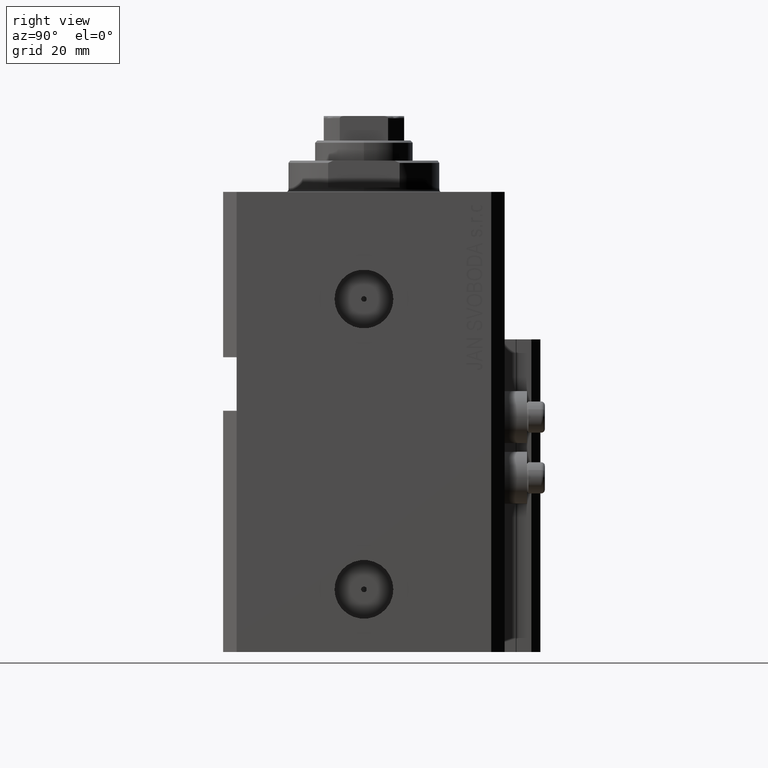
[diagram: clean part render]
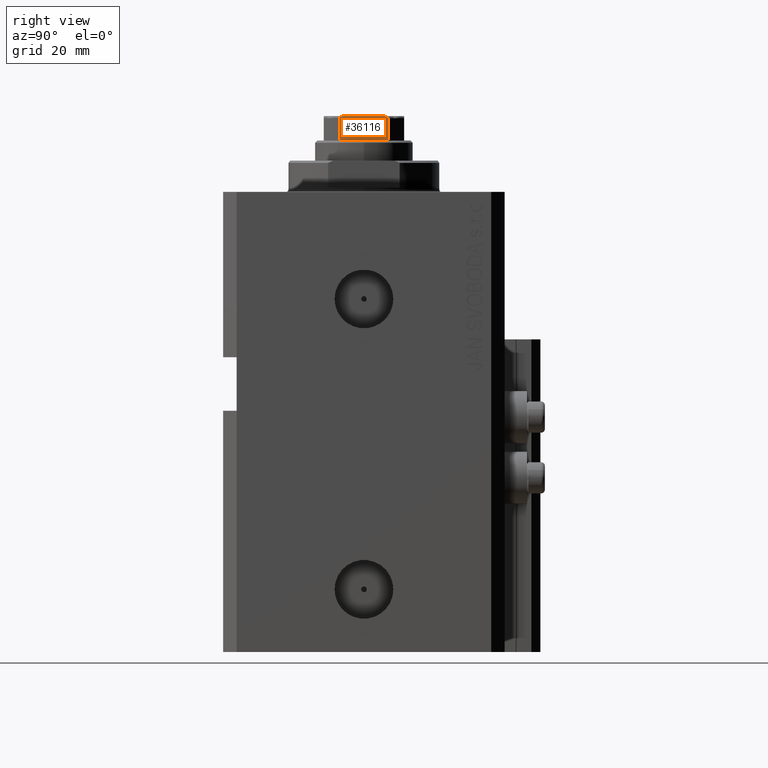
[diagram: same view with one face highlighted and labeled with its STEP entity id]
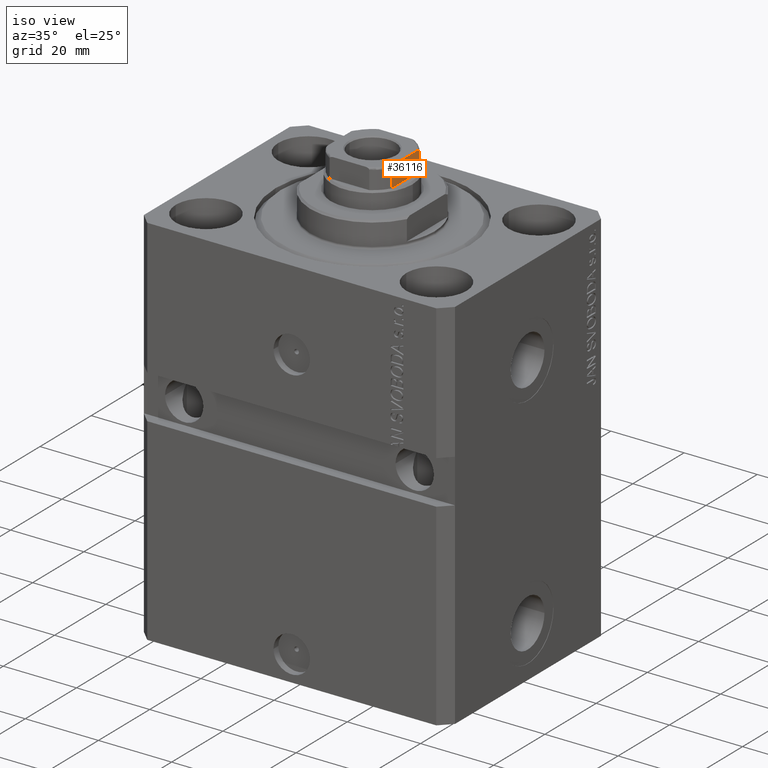
[diagram: same view with one face highlighted and labeled with its STEP entity id]
A machine part, right view. The second image highlights one B-rep face of the part: STEP entity #36116.
A second angle (iso view) of the same face is appended — the face is thin or edge-on in the first view.
In plain terms, the highlighted planar face has unit normal (-1, -0, 0).
Its self-contained STEP definition (entity closure, byte-faithful):
#172 = CARTESIAN_POINT ( 'NONE',  ( 9.000000000000000000, -4.569272810556663345, 108.6000000000000227 ) ) ;
#412 = CARTESIAN_POINT ( 'NONE',  ( 9.000000000000000000, -5.335288102212750516, 108.2956905402761976 ) ) ;
#932 = CARTESIAN_POINT ( 'NONE',  ( 8.999999999999996447, -5.408326913195990571, 108.1000000000000085 ) ) ;
#2452 = EDGE_CURVE ( 'NONE', #34375, #44180, #30766, .T. ) ;
#4058 = CARTESIAN_POINT ( 'NONE',  ( 9.000000000000003553, -5.408326913195981689, 108.1537434673187903 ) ) ;
#4547 = CARTESIAN_POINT ( 'NONE',  ( 9.000000000000000000, -5.297634495023392454, 108.3344228052779954 ) ) ;
#5740 = VECTOR ( 'NONE', #33685, 1000.000000000000000 ) ;
#7480 = CARTESIAN_POINT ( 'NONE',  ( 9.000000000000001776, -4.358898943540675752, 108.6000000000000085 ) ) ;
#7713 = CARTESIAN_POINT ( 'NONE',  ( 9.000000000000001776, -4.775913644518298362, 108.5781460743082931 ) ) ;
#7873 = B_SPLINE_CURVE_WITH_KNOTS ( 'NONE', 3,
 ( #20241, #41650, #8319, #20481, #12936, #30941, #27772, #35312, #45785, #9287 ),
 .UNSPECIFIED., .F., .F.,
 ( 4, 2, 2, 2, 4 ),
 ( 0.000000000000000000, 0.0001582447020888230174, 0.0003164894041776460348, 0.0006329788083552681088, 0.001265957616710514533 ),
 .UNSPECIFIED. ) ;
#8319 = CARTESIAN_POINT ( 'NONE',  ( 8.999999999999998224, 5.390954572107322207, 108.2053628521400128 ) ) ;
#8452 = CARTESIAN_POINT ( 'NONE',  ( 8.999999999999996447, -5.408326913195990571, 108.1000000000000085 ) ) ;
#9097 = EDGE_CURVE ( 'NONE', #34375, #47603, #29974, .T. ) ;
#9287 = CARTESIAN_POINT ( 'NONE',  ( 9.000000000000000000, 4.358898943540675752, 108.6000000000000085 ) ) ;
#11563 = ORIENTED_EDGE ( 'NONE', *, *, #45479, .T. ) ;
#12761 = CARTESIAN_POINT ( 'NONE',  ( 9.000000000000000000, 8.999999999999998224, 103.0999999999999943 ) ) ;
#12936 = CARTESIAN_POINT ( 'NONE',  ( 9.000000000000000000, 5.298186678102088543, 108.3338781215004758 ) ) ;
#15919 = B_SPLINE_CURVE_WITH_KNOTS ( 'NONE', 3,
 ( #7480, #172, #7713, #22312, #37869, #4547, #412, #30328, #4058, #8452 ),
 .UNSPECIFIED., .F., .F.,
 ( 4, 2, 2, 2, 4 ),
 ( 8.673617379884035472E-19, 0.0006221106941441107265, 0.0009331660412161590966, 0.001088693714752182306, 0.001244221388288205407 ),
 .UNSPECIFIED. ) ;
#16284 = VERTEX_POINT ( 'NONE', #34893 ) ;
#16420 = PLANE ( 'NONE',  #19871 ) ;
#19871 = AXIS2_PLACEMENT_3D ( 'NONE', #35390, #20082, #34904 ) ;
#20082 = DIRECTION ( 'NONE',  ( -1.000000000000000000, -9.637352644315595243E-17, 0.000000000000000000 ) ) ;
#20174 = CARTESIAN_POINT ( 'NONE',  ( 8.999999999999996447, -5.408326913195990571, 103.0999999999999943 ) ) ;
#20241 = CARTESIAN_POINT ( 'NONE',  ( 9.000000000000000000, 5.408326913195986130, 108.1000000000000085 ) ) ;
#20481 = CARTESIAN_POINT ( 'NONE',  ( 8.999999999999998224, 5.335664150027723984, 108.2951843380013059 ) ) ;
#22312 = CARTESIAN_POINT ( 'NONE',  ( 9.000000000000001776, -5.074490744525476771, 108.4787200784332697 ) ) ;
#22674 = VERTEX_POINT ( 'NONE', #38848 ) ;
#22865 = VERTEX_POINT ( 'NONE', #47838 ) ;
#23157 = EDGE_LOOP ( 'NONE', ( #26880, #33947, #43580, #34907, #46107, #11563 ) ) ;
#23461 = VECTOR ( 'NONE', #38056, 1000.000000000000000 ) ;
#23702 = VECTOR ( 'NONE', #29496, 1000.000000000000000 ) ;
#26880 = ORIENTED_EDGE ( 'NONE', *, *, #34031, .F. ) ;
#27145 = EDGE_CURVE ( 'NONE', #44180, #22674, #34410, .T. ) ;
#27772 = CARTESIAN_POINT ( 'NONE',  ( 9.000000000000000000, 5.077896145217238200, 108.4773016776066896 ) ) ;
#28492 = CARTESIAN_POINT ( 'NONE',  ( 9.000000000000000000, 8.999999999999998224, 108.6000000000000085 ) ) ;
#29496 = DIRECTION ( 'NONE',  ( -0.000000000000000000, -0.000000000000000000, 1.000000000000000000 ) ) ;
#29974 = LINE ( 'NONE', #44343, #23702 ) ;
#30328 = CARTESIAN_POINT ( 'NONE',  ( 9.000000000000003553, -5.390945448132521634, 108.2054816538970385 ) ) ;
#30766 = LINE ( 'NONE', #12761, #23461 ) ;
#30941 = CARTESIAN_POINT ( 'NONE',  ( 9.000000000000001776, 5.174818616237121915, 108.4325218846533403 ) ) ;
#33685 = DIRECTION ( 'NONE',  ( -0.000000000000000000, -0.000000000000000000, 1.000000000000000000 ) ) ;
#33947 = ORIENTED_EDGE ( 'NONE', *, *, #39123, .T. ) ;
#34031 = EDGE_CURVE ( 'NONE', #16284, #22865, #46750, .T. ) ;
#34098 = CARTESIAN_POINT ( 'NONE',  ( 9.000000000000000000, 5.408326913195986130, 103.0999999999999943 ) ) ;
#34375 = VERTEX_POINT ( 'NONE', #20174 ) ;
#34410 = LINE ( 'NONE', #41728, #5740 ) ;
#34893 = CARTESIAN_POINT ( 'NONE',  ( 9.000000000000001776, -4.358898943540675752, 108.6000000000000085 ) ) ;
#34904 = DIRECTION ( 'NONE',  ( 9.637352644315595243E-17, -1.000000000000000000, 0.000000000000000000 ) ) ;
#34907 = ORIENTED_EDGE ( 'NONE', *, *, #2452, .T. ) ;
#35312 = CARTESIAN_POINT ( 'NONE',  ( 9.000000000000000000, 4.778533838065921913, 108.5778291476470088 ) ) ;
#35390 = CARTESIAN_POINT ( 'NONE',  ( 9.000000000000000000, 8.999999999999998224, 108.6000000000000085 ) ) ;
#35790 = DIRECTION ( 'NONE',  ( -9.637352644315595243E-17, 1.000000000000000000, -0.000000000000000000 ) ) ;
#36116 = ADVANCED_FACE ( 'NONE', ( #46354 ), #16420, .F. ) ;
#37869 = CARTESIAN_POINT ( 'NONE',  ( 9.000000000000003553, -5.173732970196568637, 108.4331808643799064 ) ) ;
#38056 = DIRECTION ( 'NONE',  ( -9.637352644315595243E-17, 1.000000000000000000, -0.000000000000000000 ) ) ;
#38848 = CARTESIAN_POINT ( 'NONE',  ( 9.000000000000000000, 5.408326913195986130, 108.1000000000000085 ) ) ;
#39123 = EDGE_CURVE ( 'NONE', #16284, #47603, #15919, .T. ) ;
#41650 = CARTESIAN_POINT ( 'NONE',  ( 9.000000000000001776, 5.408326913195987906, 108.1535720727335246 ) ) ;
#41728 = CARTESIAN_POINT ( 'NONE',  ( 9.000000000000000000, 5.408326913195986130, -0.001000000000001000089 ) ) ;
#43580 = ORIENTED_EDGE ( 'NONE', *, *, #9097, .F. ) ;
#44180 = VERTEX_POINT ( 'NONE', #34098 ) ;
#44343 = CARTESIAN_POINT ( 'NONE',  ( 8.999999999999996447, -5.408326913195990571, -0.001000000000001000089 ) ) ;
#45479 = EDGE_CURVE ( 'NONE', #22674, #22865, #7873, .T. ) ;
#45785 = CARTESIAN_POINT ( 'NONE',  ( 9.000000000000000000, 4.569278586016985777, 108.6000000000000085 ) ) ;
#46107 = ORIENTED_EDGE ( 'NONE', *, *, #27145, .T. ) ;
#46354 = FACE_OUTER_BOUND ( 'NONE', #23157, .T. ) ;
#46750 = LINE ( 'NONE', #28492, #46994 ) ;
#46994 = VECTOR ( 'NONE', #35790, 1000.000000000000000 ) ;
#47603 = VERTEX_POINT ( 'NONE', #932 ) ;
#47838 = CARTESIAN_POINT ( 'NONE',  ( 9.000000000000000000, 4.358898943540675752, 108.6000000000000085 ) ) ;